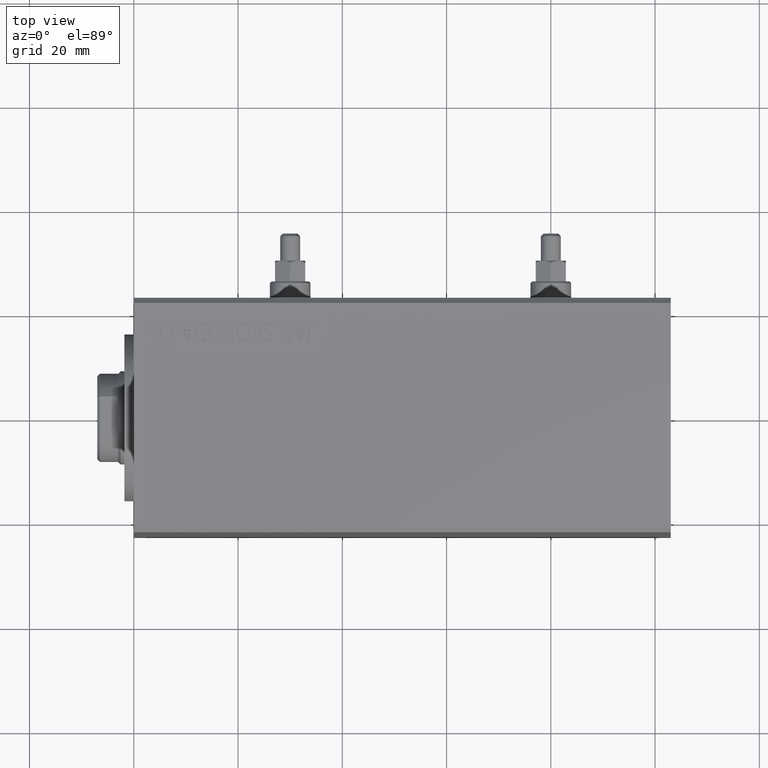
[diagram: clean part render]
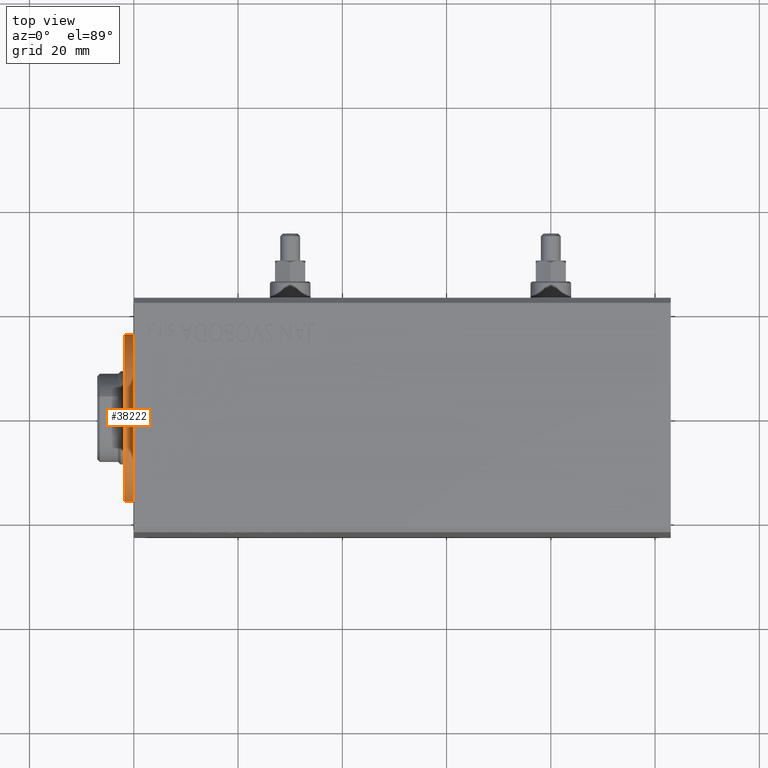
[diagram: same view with one face highlighted and labeled with its STEP entity id]
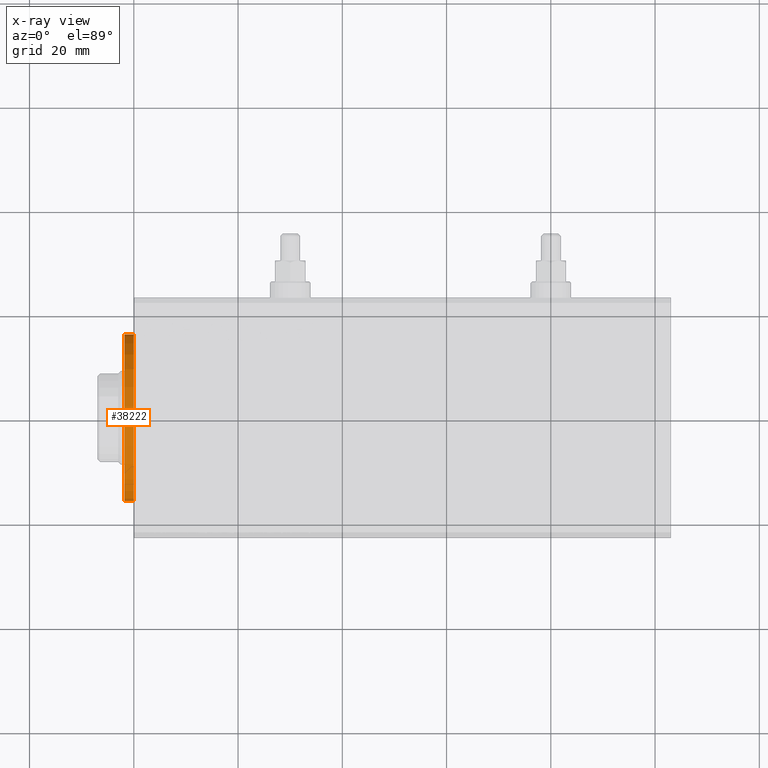
[diagram: x-ray of the same camera — body ghosted, the highlighted face saturated]
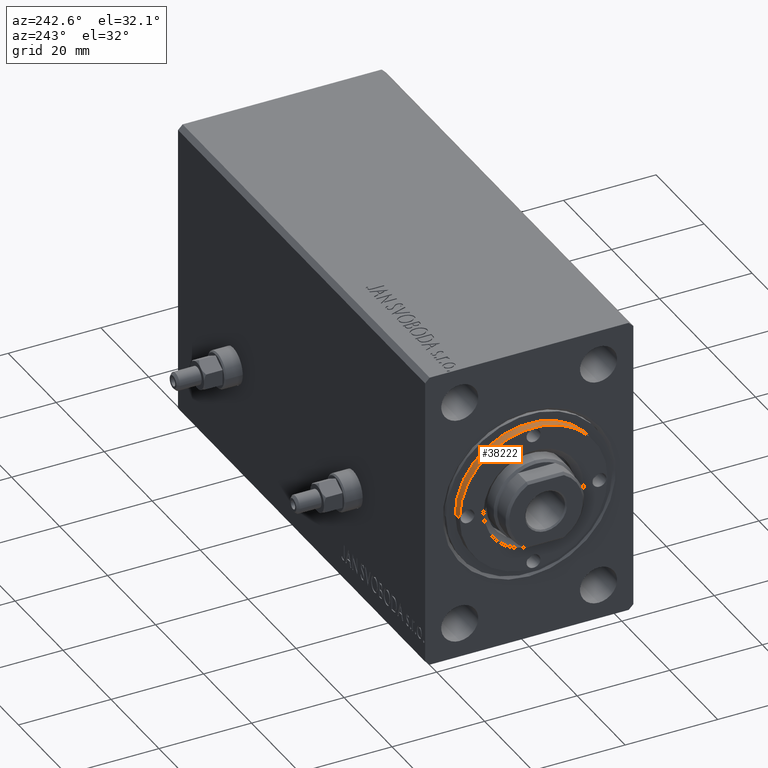
[diagram: same view with one face highlighted and labeled with its STEP entity id]
A machine part, top view. The second image highlights one B-rep face of the part: STEP entity #38222.
The next image is the same camera in x-ray: the body ghosted, the highlighted face saturated — about 0% of this face is hidden behind the body in this view.
A second angle (auxiliary view) of the same face is appended — the face is thin or edge-on in the first view.
In plain terms, the highlighted cylindrical surface (partial cylindrical patch) has radius 16 mm, axis along (1, -0, 0).
Its self-contained STEP definition (entity closure, byte-faithful):
#2181 = DIRECTION ( 'NONE',  ( 0.000000000000000000, 0.000000000000000000, 1.000000000000000000 ) ) ;
#3076 = AXIS2_PLACEMENT_3D ( 'NONE', #37512, #16293, #29760 ) ;
#3090 = VERTEX_POINT ( 'NONE', #20468 ) ;
#3947 = DIRECTION ( 'NONE',  ( -0.000000000000000000, -0.000000000000000000, -1.000000000000000000 ) ) ;
#4001 = CARTESIAN_POINT ( 'NONE',  ( -16.00000000000000000, 0.000000000000000000, 5.200000000000000178 ) ) ;
#4245 = CARTESIAN_POINT ( 'NONE',  ( 0.000000000000000000, 0.000000000000000000, 6.999999999999999112 ) ) ;
#4717 = EDGE_CURVE ( 'NONE', #6521, #33732, #35132, .T. ) ;
#6521 = VERTEX_POINT ( 'NONE', #4001 ) ;
#6726 = EDGE_CURVE ( 'NONE', #3090, #33732, #42086, .T. ) ;
#7321 = CARTESIAN_POINT ( 'NONE',  ( -16.00000000000000000, 0.000000000000000000, 6.999999999999999112 ) ) ;
#10259 = ORIENTED_EDGE ( 'NONE', *, *, #4717, .T. ) ;
#14804 = VECTOR ( 'NONE', #3947, 1000.000000000000000 ) ;
#15187 = LINE ( 'NONE', #29095, #37354 ) ;
#16152 = DIRECTION ( 'NONE',  ( 1.000000000000000000, 0.000000000000000000, 0.000000000000000000 ) ) ;
#16174 = EDGE_LOOP ( 'NONE', ( #22797, #29196, #20327, #10259 ) ) ;
#16293 = DIRECTION ( 'NONE',  ( 0.000000000000000000, 0.000000000000000000, 1.000000000000000000 ) ) ;
#17975 = DIRECTION ( 'NONE',  ( -1.000000000000000000, 0.000000000000000000, 0.000000000000000000 ) ) ;
#18659 = VERTEX_POINT ( 'NONE', #7321 ) ;
#19066 = DIRECTION ( 'NONE',  ( -0.000000000000000000, -0.000000000000000000, -1.000000000000000000 ) ) ;
#20327 = ORIENTED_EDGE ( 'NONE', *, *, #24786, .T. ) ;
#20468 = CARTESIAN_POINT ( 'NONE',  ( 16.00000000000000000, 1.959434878635765131E-15, 6.999999999999999112 ) ) ;
#21389 = FACE_OUTER_BOUND ( 'NONE', #16174, .T. ) ;
#21992 = AXIS2_PLACEMENT_3D ( 'NONE', #23664, #2181, #16152 ) ;
#22797 = ORIENTED_EDGE ( 'NONE', *, *, #6726, .F. ) ;
#23664 = CARTESIAN_POINT ( 'NONE',  ( 0.000000000000000000, 0.000000000000000000, 5.200000000000000178 ) ) ;
#24170 = EDGE_CURVE ( 'NONE', #18659, #3090, #38104, .T. ) ;
#24786 = EDGE_CURVE ( 'NONE', #18659, #6521, #15187, .T. ) ;
#25266 = CYLINDRICAL_SURFACE ( 'NONE', #43480, 16.00000000000000000 ) ;
#29095 = CARTESIAN_POINT ( 'NONE',  ( -16.00000000000000000, 0.000000000000000000, 6.999999999999999112 ) ) ;
#29196 = ORIENTED_EDGE ( 'NONE', *, *, #24170, .F. ) ;
#29760 = DIRECTION ( 'NONE',  ( 1.000000000000000000, 0.000000000000000000, 0.000000000000000000 ) ) ;
#31598 = CARTESIAN_POINT ( 'NONE',  ( 16.00000000000000000, 1.959434878635765131E-15, 6.999999999999999112 ) ) ;
#33732 = VERTEX_POINT ( 'NONE', #38038 ) ;
#35132 = CIRCLE ( 'NONE', #21992, 16.00000000000000000 ) ;
#35320 = DIRECTION ( 'NONE',  ( -0.000000000000000000, -0.000000000000000000, -1.000000000000000000 ) ) ;
#37354 = VECTOR ( 'NONE', #19066, 1000.000000000000000 ) ;
#37512 = CARTESIAN_POINT ( 'NONE',  ( 0.000000000000000000, 0.000000000000000000, 6.999999999999999112 ) ) ;
#38038 = CARTESIAN_POINT ( 'NONE',  ( 16.00000000000000000, 1.959434878635765131E-15, 5.200000000000000178 ) ) ;
#38104 = CIRCLE ( 'NONE', #3076, 16.00000000000000000 ) ;
#38222 = ADVANCED_FACE ( 'NONE', ( #21389 ), #25266, .T. ) ;
#42086 = LINE ( 'NONE', #31598, #14804 ) ;
#43480 = AXIS2_PLACEMENT_3D ( 'NONE', #4245, #35320, #17975 ) ;